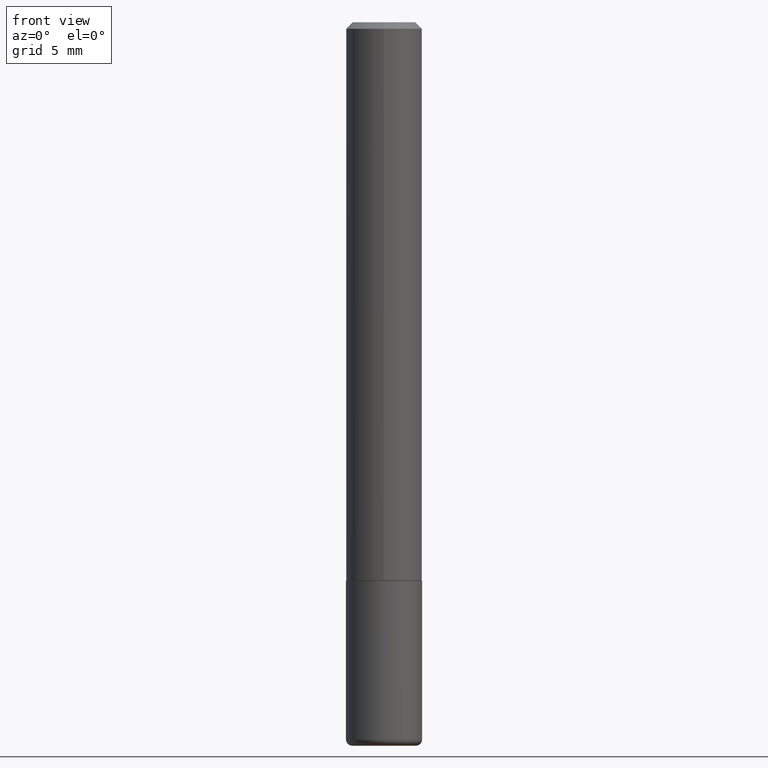
[diagram: clean part render]
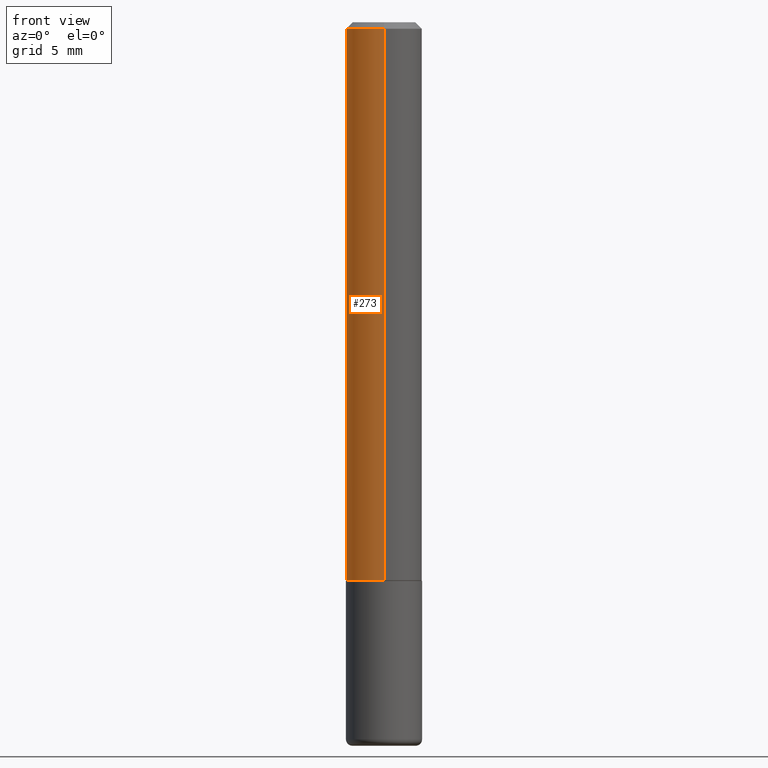
[diagram: same view with one face highlighted and labeled with its STEP entity id]
A machine part, front view. The second image highlights one B-rep face of the part: STEP entity #273.
In plain terms, the highlighted cylindrical surface (partial cylindrical patch) has radius 2.9997 mm, axis along (-0, 0, 1).
Its self-contained STEP definition (entity closure, byte-faithful):
#29 = ORIENTED_EDGE ( 'NONE', *, *, #362, .T. ) ;
#39 = DIRECTION ( 'NONE',  ( -2.439979117146422425E-29, 3.499342886000280020E-15, 1.000000000000000000 ) ) ;
#42 = EDGE_CURVE ( 'NONE', #244, #364, #124, .T. ) ;
#43 = CARTESIAN_POINT ( 'NONE',  ( 0.000000000000000000, 0.000000000000000000, 0.000000000000000000 ) ) ;
#44 = CYLINDRICAL_SURFACE ( 'NONE', #365, 0.1181000000000001354 ) ;
#48 = DIRECTION ( 'NONE',  ( -2.439979117146422706E-29, 3.499342886000279626E-15, 1.000000000000000000 ) ) ;
#65 = DIRECTION ( 'NONE',  ( -6.982962677686265922E-15, -1.000000000000000000, 3.505890868245044514E-15 ) ) ;
#69 = VECTOR ( 'NONE', #39, 39.37007874015748143 ) ;
#89 = CIRCLE ( 'NONE', #196, 0.1181000000000000383 ) ;
#102 = CARTESIAN_POINT ( 'NONE',  ( -8.246878922347489529E-16, -0.1181000000000001354, 4.132723948366334846E-16 ) ) ;
#103 = CARTESIAN_POINT ( 'NONE',  ( -8.246878922347075377E-16, -0.1181000000000063110, -1.731299999999999173 ) ) ;
#105 = CARTESIAN_POINT ( 'NONE',  ( 4.224335845515600924E-29, -6.058412338532283405E-15, -1.731299999999999617 ) ) ;
#124 = LINE ( 'NONE', #159, #69 ) ;
#132 = DIRECTION ( 'NONE',  ( -2.439979117146422425E-29, 3.499342886000280020E-15, 1.000000000000000000 ) ) ;
#143 = ORIENTED_EDGE ( 'NONE', *, *, #189, .F. ) ;
#149 = CARTESIAN_POINT ( 'NONE',  ( 8.246878922347486570E-16, 0.1180999999999999689, -0.02000000000000048961 ) ) ;
#159 = CARTESIAN_POINT ( 'NONE',  ( 8.391509709326791832E-16, 0.1181000000000001354, -4.132723948366334846E-16 ) ) ;
#165 = CIRCLE ( 'NONE', #239, 0.1181000000000002603 ) ;
#189 = EDGE_CURVE ( 'NONE', #364, #271, #89, .T. ) ;
#195 = CARTESIAN_POINT ( 'NONE',  ( -8.102248135368175393E-16, -0.1181000000000001077, -0.01999999999999966388 ) ) ;
#196 = AXIS2_PLACEMENT_3D ( 'NONE', #222, #355, #65 ) ;
#197 = FACE_OUTER_BOUND ( 'NONE', #211, .T. ) ;
#211 = EDGE_LOOP ( 'NONE', ( #249, #29, #378, #143 ) ) ;
#222 = CARTESIAN_POINT ( 'NONE',  ( 4.879958234292863908E-31, -6.998685772000586467E-17, -0.02000000000000007674 ) ) ;
#239 = AXIS2_PLACEMENT_3D ( 'NONE', #105, #342, #403 ) ;
#242 = VERTEX_POINT ( 'NONE', #103 ) ;
#244 = VERTEX_POINT ( 'NONE', #394 ) ;
#249 = ORIENTED_EDGE ( 'NONE', *, *, #42, .F. ) ;
#264 = DIRECTION ( 'NONE',  ( -6.982962677686265922E-15, -1.000000000000000000, 3.499342886000279626E-15 ) ) ;
#271 = VERTEX_POINT ( 'NONE', #195 ) ;
#273 = ADVANCED_FACE ( 'NONE', ( #197 ), #44, .T. ) ;
#285 = EDGE_CURVE ( 'NONE', #242, #271, #396, .T. ) ;
#342 = DIRECTION ( 'NONE',  ( -2.439979117146422706E-29, 3.499342886000279626E-15, 1.000000000000000000 ) ) ;
#354 = VECTOR ( 'NONE', #132, 39.37007874015748143 ) ;
#355 = DIRECTION ( 'NONE',  ( -2.439979117146422706E-29, 3.499342886000279626E-15, 1.000000000000000000 ) ) ;
#362 = EDGE_CURVE ( 'NONE', #244, #242, #165, .T. ) ;
#364 = VERTEX_POINT ( 'NONE', #149 ) ;
#365 = AXIS2_PLACEMENT_3D ( 'NONE', #43, #48, #264 ) ;
#378 = ORIENTED_EDGE ( 'NONE', *, *, #285, .T. ) ;
#394 = CARTESIAN_POINT ( 'NONE',  ( 8.391509709327010740E-16, 0.1180999999999942096, -1.731300000000000283 ) ) ;
#396 = LINE ( 'NONE', #102, #354 ) ;
#403 = DIRECTION ( 'NONE',  ( -6.982962677686265133E-15, -1.000000000000000000, 4.626330217890359081E-15 ) ) ;